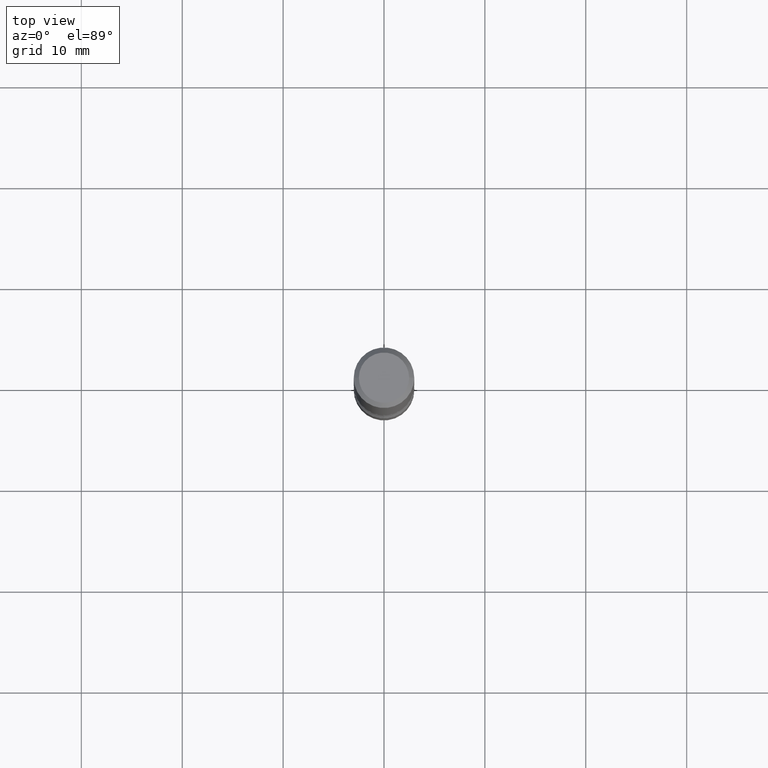
[diagram: clean part render]
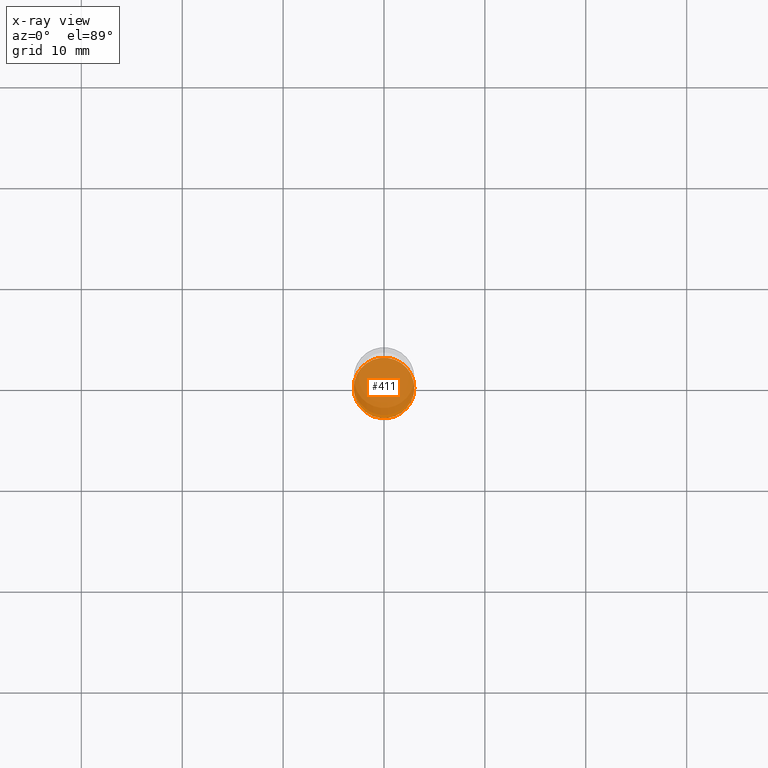
[diagram: x-ray — body ghosted, one internal face saturated and labeled with its STEP entity id]
A machine part, top view, then the same camera in x-ray: the body is ghosted and one INTERNAL B-rep face — a face not visible from any outside direction — is saturated and labeled: STEP entity #411.
In plain terms, the highlighted planar face has unit normal (0, -0, -1).
Its self-contained STEP definition (entity closure, byte-faithful):
#9 = AXIS2_PLACEMENT_3D ( 'NONE', #199, #374, #546 ) ;
#23 = VERTEX_POINT ( 'NONE', #301 ) ;
#25 = EDGE_CURVE ( 'NONE', #195, #23, #281, .T. ) ;
#38 = DIRECTION ( 'NONE',  ( -2.445468806185136597E-29, 3.491481338843145583E-15, 1.000000000000000000 ) ) ;
#64 = CIRCLE ( 'NONE', #456, 0.1181000000000000660 ) ;
#195 = VERTEX_POINT ( 'NONE', #233 ) ;
#199 = CARTESIAN_POINT ( 'NONE',  ( 5.680334943006831795E-29, -8.110012853864854101E-15, -2.322799999999998644 ) ) ;
#222 = EDGE_LOOP ( 'NONE', ( #426, #534 ) ) ;
#233 = CARTESIAN_POINT ( 'NONE',  ( 0.1181000000000000660, -8.934700746099602364E-15, -2.322799999999998644 ) ) ;
#273 = EDGE_CURVE ( 'NONE', #23, #195, #64, .T. ) ;
#281 = CIRCLE ( 'NONE', #329, 0.1181000000000000660 ) ;
#282 = CARTESIAN_POINT ( 'NONE',  ( 5.680334943006831795E-29, -8.110012853864854101E-15, -2.322799999999998644 ) ) ;
#291 = DIRECTION ( 'NONE',  ( -2.445468806185136597E-29, 3.491481338843145583E-15, 1.000000000000000000 ) ) ;
#301 = CARTESIAN_POINT ( 'NONE',  ( -0.1181000000000000660, -8.095549775166928111E-15, -2.322799999999998644 ) ) ;
#329 = AXIS2_PLACEMENT_3D ( 'NONE', #477, #38, #429 ) ;
#369 = PLANE ( 'NONE',  #9 ) ;
#374 = DIRECTION ( 'NONE',  ( 2.438088387897960049E-29, -3.491481338843145188E-15, -1.000000000000000000 ) ) ;
#411 = ADVANCED_FACE ( 'NONE', ( #418 ), #369, .F. ) ;
#418 = FACE_OUTER_BOUND ( 'NONE', #222, .T. ) ;
#426 = ORIENTED_EDGE ( 'NONE', *, *, #25, .T. ) ;
#429 = DIRECTION ( 'NONE',  ( 1.000000000000000000, -6.982962677686269077E-15, 0.000000000000000000 ) ) ;
#456 = AXIS2_PLACEMENT_3D ( 'NONE', #282, #291, #468 ) ;
#468 = DIRECTION ( 'NONE',  ( 1.000000000000000000, -6.982962677686269077E-15, 0.000000000000000000 ) ) ;
#477 = CARTESIAN_POINT ( 'NONE',  ( 5.680334943006831795E-29, -8.110012853864854101E-15, -2.322799999999998644 ) ) ;
#534 = ORIENTED_EDGE ( 'NONE', *, *, #273, .T. ) ;
#546 = DIRECTION ( 'NONE',  ( -1.000000000000000000, 6.982962677686265922E-15, -4.876176775795935793E-29 ) ) ;